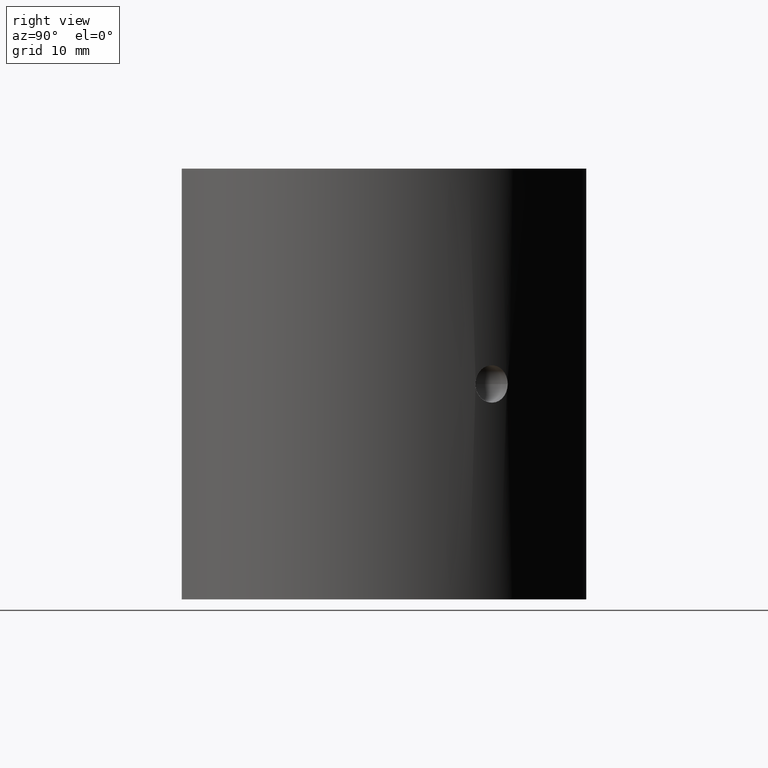
[diagram: clean part render]
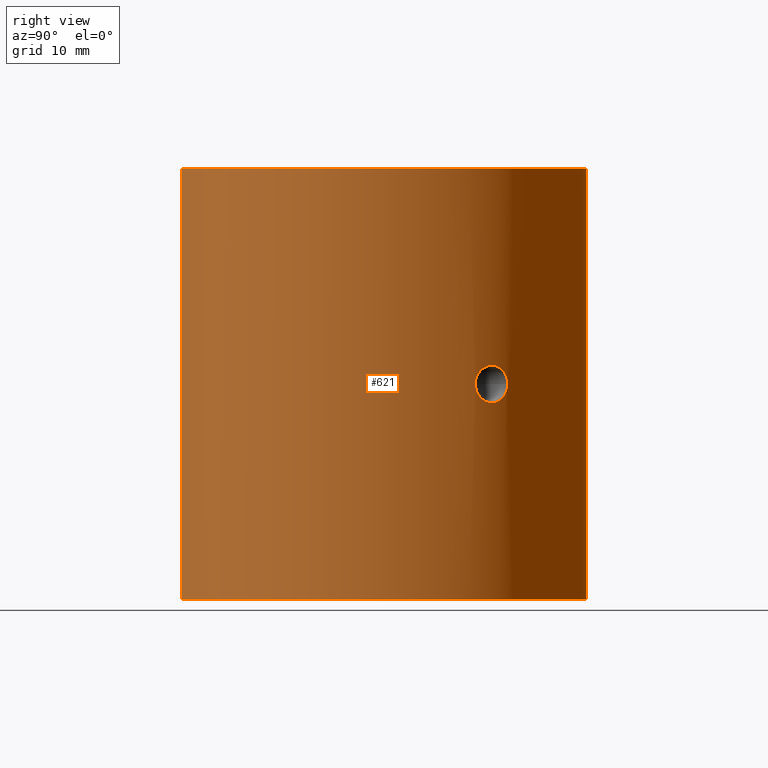
[diagram: same view with one face highlighted and labeled with its STEP entity id]
A machine part, right view. The second image highlights one B-rep face of the part: STEP entity #621.
In plain terms, the highlighted cylindrical surface (partial cylindrical patch) has radius 19.05 mm, axis along (-0, -0, -1).
Its self-contained STEP definition (entity closure, byte-faithful):
#4 = CARTESIAN_POINT ( 'NONE',  ( 17.01565507800766500, 8.565975748643698000, -1.243950164245572600 ) ) ;
#14 = DIRECTION ( 'NONE',  ( -1.224646799147350500E-016, -0.0000000000000000000, -1.000000000000000000 ) ) ;
#22 = CARTESIAN_POINT ( 'NONE',  ( 17.26078413097466300, 8.060262476116593100, 2.020667257415075000E-016 ) ) ;
#38 = DIRECTION ( 'NONE',  ( -1.000000000000000000, 0.0000000000000000000, 0.0000000000000000000 ) ) ;
#88 = CARTESIAN_POINT ( 'NONE',  ( 15.73005994635905400, 10.74590890078354200, 0.8316350020139843300 ) ) ;
#94 = CARTESIAN_POINT ( 'NONE',  ( 16.97828530475459300, 8.639929450375696300, 1.311713316252957100 ) ) ;
#97 = VERTEX_POINT ( 'NONE', #1075 ) ;
#98 = CARTESIAN_POINT ( 'NONE',  ( 16.75813757870110600, 9.059652095727887700, 1.565215042464108000 ) ) ;
#113 = CARTESIAN_POINT ( 'NONE',  ( 6.654321903845652000, -17.85000000000000100, -19.00000000000000400 ) ) ;
#118 = CARTESIAN_POINT ( 'NONE',  ( 17.11461735754569700, 8.366358851147474200, -1.006555369401223900 ) ) ;
#147 = DIRECTION ( 'NONE',  ( -1.224646799147350500E-016, -0.0000000000000000000, -1.000000000000000000 ) ) ;
#148 = CARTESIAN_POINT ( 'NONE',  ( 6.654321903845657400, 17.84999999999999400, -31.93906810035839800 ) ) ;
#157 = FACE_BOUND ( 'NONE', #236, .T. ) ;
#162 = CARTESIAN_POINT ( 'NONE',  ( 0.0000000000000000000, 0.0000000000000000000, -31.93906810035839800 ) ) ;
#203 = CARTESIAN_POINT ( 'NONE',  ( 16.60566664071821200, 9.336244399601058700, 1.639145259101398600 ) ) ;
#207 = CARTESIAN_POINT ( 'NONE',  ( 16.12050423523770700, 10.15095316555642700, 1.483320146304215600 ) ) ;
#222 = VERTEX_POINT ( 'NONE', #1290 ) ;
#236 = EDGE_LOOP ( 'NONE', ( #654, #1011 ) ) ;
#309 = CARTESIAN_POINT ( 'NONE',  ( 16.70802609073615800, 9.151802457604929900, 1.597061655437760400 ) ) ;
#329 = CARTESIAN_POINT ( 'NONE',  ( 16.55132681539708600, 9.432267731515489500, -1.650038726114885900 ) ) ;
#330 = VERTEX_POINT ( 'NONE', #1071 ) ;
#336 = CARTESIAN_POINT ( 'NONE',  ( 17.22489456637134000, 8.136782674229026600, -0.5315211267713244600 ) ) ;
#339 = CARTESIAN_POINT ( 'NONE',  ( 15.61695249371083300, 10.90934177564697500, -0.2163155206198695300 ) ) ;
#347 = CARTESIAN_POINT ( 'NONE',  ( 16.75710304632838500, 9.061566756828984400, -1.565958987164363300 ) ) ;
#359 = CARTESIAN_POINT ( 'NONE',  ( 6.654321903845657400, -17.84999999999999400, -31.93906810035839800 ) ) ;
#360 = DIRECTION ( 'NONE',  ( 1.224646799147350500E-016, 0.0000000000000000000, 1.000000000000000000 ) ) ;
#376 = B_SPLINE_CURVE_WITH_KNOTS ( 'NONE', 3,
 ( #1203, #1322, #649, #653, #533, #546, #94, #1432, #1208, #98, #309, #203, #978, #1307, #428, #660, #981, #207, #1435, #1103, #433, #1095, #88, #772, #1092, #1098 ),
 .UNSPECIFIED., .F., .F.,
 ( 4, 2, 2, 2, 2, 2, 2, 2, 2, 2, 2, 2, 4 ),
 ( 0.005161068146131831000, 0.005806051757352773800, 0.006451035368573717500, 0.006773527174184188400, 0.007096018979794660300, 0.007418510785405131200, 0.007741002591015603100, 0.008063494396626074900, 0.008385986202236546700, 0.008708478007847016800, 0.009030969813457488700, 0.009675953424678432300, 0.01032093703589937400 ),
 .UNSPECIFIED. ) ;
#380 = VECTOR ( 'NONE', #14, 1000.000000000000000 ) ;
#428 = CARTESIAN_POINT ( 'NONE',  ( 16.38942598168145200, 9.710836310594345400, 1.639446042719382000 ) ) ;
#433 = CARTESIAN_POINT ( 'NONE',  ( 15.92601336711078900, 10.45324911404658300, 1.243572887463719700 ) ) ;
#444 = CARTESIAN_POINT ( 'NONE',  ( 16.89609852627243200, 8.799565931564647100, -1.431593881218852900 ) ) ;
#451 = CARTESIAN_POINT ( 'NONE',  ( 15.84148222803165300, 10.58091455911873300, -1.090881399473324200 ) ) ;
#463 = CARTESIAN_POINT ( 'NONE',  ( 17.23821757406661700, 8.108440266158430300, -0.4286535483668675900 ) ) ;
#486 = LINE ( 'NONE', #359, #380 ) ;
#514 = AXIS2_PLACEMENT_3D ( 'NONE', #1152, #714, #917 ) ;
#533 = CARTESIAN_POINT ( 'NONE',  ( 17.11845235816605600, 8.359681726993109400, 1.013711685874964400 ) ) ;
#534 = EDGE_LOOP ( 'NONE', ( #908, #827, #1179, #724 ) ) ;
#546 = CARTESIAN_POINT ( 'NONE',  ( 17.01657973781694000, 8.564129346020747500, 1.242020872440629200 ) ) ;
#564 = CARTESIAN_POINT ( 'NONE',  ( 15.61078413097466100, 10.91814630860522300, 0.0000000000000000000 ) ) ;
#575 = CARTESIAN_POINT ( 'NONE',  ( 15.96775179229211600, 10.39021900892403500, -1.319077114444314300 ) ) ;
#580 = CARTESIAN_POINT ( 'NONE',  ( 15.64102548197286400, 10.87479954026614600, -0.4272846039626485000 ) ) ;
#621 = ADVANCED_FACE ( 'NONE', ( #157, #1249 ), #924, .T. ) ;
#627 = DIRECTION ( 'NONE',  ( -1.000000000000000000, 0.0000000000000000000, 1.821231995776175700E-016 ) ) ;
#649 = CARTESIAN_POINT ( 'NONE',  ( 17.24252505538149500, 8.099668500101348200, 0.4325064175069637800 ) ) ;
#653 = CARTESIAN_POINT ( 'NONE',  ( 17.17175730652585500, 8.248639348569481600, 0.8296514157329852900 ) ) ;
#654 = ORIENTED_EDGE ( 'NONE', *, *, #1334, .T. ) ;
#660 = CARTESIAN_POINT ( 'NONE',  ( 16.28088724407355400, 9.891730708320729100, 1.597668135974701100 ) ) ;
#672 = CARTESIAN_POINT ( 'NONE',  ( 17.26078413097467400, 8.060262476116596600, -0.1077124504069222900 ) ) ;
#677 = CARTESIAN_POINT ( 'NONE',  ( 17.25620680762654000, 8.070085209781993300, -0.2171185821548935500 ) ) ;
#684 = CARTESIAN_POINT ( 'NONE',  ( 15.80253967000229100, 10.63888360763968400, -1.006013819237391100 ) ) ;
#688 = CARTESIAN_POINT ( 'NONE',  ( 17.18924994856523400, 8.211815348386297200, -0.7314100125181884900 ) ) ;
#692 = CIRCLE ( 'NONE', #838, 19.04999999999999700 ) ;
#714 = DIRECTION ( 'NONE',  ( -1.224646799147350500E-016, -0.0000000000000000000, -1.000000000000000000 ) ) ;
#724 = ORIENTED_EDGE ( 'NONE', *, *, #1267, .T. ) ;
#737 = AXIS2_PLACEMENT_3D ( 'NONE', #162, #147, #38 ) ;
#772 = CARTESIAN_POINT ( 'NONE',  ( 15.63613571300858900, 10.88212313771379100, 0.4347756836946272700 ) ) ;
#783 = CARTESIAN_POINT ( 'NONE',  ( 17.08451312757541300, 8.427803358751504000, -1.089914829125269600 ) ) ;
#788 = CARTESIAN_POINT ( 'NONE',  ( 15.70640983788517900, 10.78020951962931700, -0.7319207306396199300 ) ) ;
#804 = CARTESIAN_POINT ( 'NONE',  ( 15.61078413097466100, 10.91814630860522300, 0.0000000000000000000 ) ) ;
#806 = EDGE_CURVE ( 'NONE', #222, #1363, #486, .T. ) ;
#827 = ORIENTED_EDGE ( 'NONE', *, *, #806, .T. ) ;
#838 = AXIS2_PLACEMENT_3D ( 'NONE', #1260, #1167, #627 ) ;
#840 = LINE ( 'NONE', #148, #1426 ) ;
#858 = B_SPLINE_CURVE_WITH_KNOTS ( 'NONE', 3,
 ( #564, #898, #339, #580, #1444, #788, #1336, #684, #451, #575, #1243, #1356, #1017, #329, #1134, #910, #347, #1109, #444, #1125, #4, #783, #118, #1022, #688, #336, #463, #677, #672, #22 ),
 .UNSPECIFIED., .F., .F.,
 ( 4, 2, 2, 2, 2, 2, 2, 2, 2, 2, 2, 2, 2, 2, 4 ),
 ( 0.0000000000000000000, 0.0003225667591332396000, 0.0006451335182664792000, 0.0009677002773997187000, 0.001290267036532958600, 0.001935400554799434100, 0.002580534073065909400, 0.002903100832199149900, 0.003225667591332389900, 0.003548234350465630400, 0.003870801109598870400, 0.004193367868732110500, 0.004515934627865350100, 0.004838501386998591400, 0.005161068146131831000 ),
 .UNSPECIFIED. ) ;
#898 = CARTESIAN_POINT ( 'NONE',  ( 15.61078413097466300, 10.91814630860522500, -0.1090743481477804800 ) ) ;
#908 = ORIENTED_EDGE ( 'NONE', *, *, #1020, .T. ) ;
#910 = CARTESIAN_POINT ( 'NONE',  ( 16.70793256847451900, 9.151977555784657900, -1.597140314786026100 ) ) ;
#917 = DIRECTION ( 'NONE',  ( -1.000000000000000000, 0.0000000000000000000, 1.821231995776175500E-016 ) ) ;
#924 = CYLINDRICAL_SURFACE ( 'NONE', #737, 19.04999999999999700 ) ;
#976 = EDGE_CURVE ( 'NONE', #97, #1422, #376, .T. ) ;
#978 = CARTESIAN_POINT ( 'NONE',  ( 16.55289875442129200, 9.429523418457513600, 1.649913834276578500 ) ) ;
#981 = CARTESIAN_POINT ( 'NONE',  ( 16.22622108837223500, 9.981094937876360300, 1.566042349243279300 ) ) ;
#1011 = ORIENTED_EDGE ( 'NONE', *, *, #976, .T. ) ;
#1017 = CARTESIAN_POINT ( 'NONE',  ( 16.38980555278116600, 9.712010583720898500, -1.649922225843778700 ) ) ;
#1020 = EDGE_CURVE ( 'NONE', #1051, #222, #692, .T. ) ;
#1022 = CARTESIAN_POINT ( 'NONE',  ( 17.16688996531914300, 8.258569890725828700, -0.8278835885027002700 ) ) ;
#1051 = VERTEX_POINT ( 'NONE', #1271 ) ;
#1071 = CARTESIAN_POINT ( 'NONE',  ( 6.654321903845659100, 17.84999999999999400, -19.00000000000000400 ) ) ;
#1075 = CARTESIAN_POINT ( 'NONE',  ( 17.26078413097466300, 8.060262476116593100, 2.020667257415075000E-016 ) ) ;
#1092 = CARTESIAN_POINT ( 'NONE',  ( 15.61078413097466500, 10.91814630860522500, 0.2180980059723592000 ) ) ;
#1095 = CARTESIAN_POINT ( 'NONE',  ( 15.79967678332250000, 10.64405884901846400, 1.015477476588795100 ) ) ;
#1098 = CARTESIAN_POINT ( 'NONE',  ( 15.61078413097466100, 10.91814630860522300, 0.0000000000000000000 ) ) ;
#1103 = CARTESIAN_POINT ( 'NONE',  ( 15.97258106789733700, 10.38206201851099700, 1.313167906712928000 ) ) ;
#1109 = CARTESIAN_POINT ( 'NONE',  ( 16.85128628683460400, 8.885192461217485500, -1.483261654121722700 ) ) ;
#1125 = CARTESIAN_POINT ( 'NONE',  ( 16.97801284336121000, 8.640462133712560400, -1.312144534480056900 ) ) ;
#1126 = CIRCLE ( 'NONE', #514, 19.05000000000000100 ) ;
#1134 = CARTESIAN_POINT ( 'NONE',  ( 16.60520092784709700, 9.337076953742185400, -1.639296301674260800 ) ) ;
#1152 = CARTESIAN_POINT ( 'NONE',  ( 1.584578833305349700E-015, 0.0000000000000000000, -19.00000000000000400 ) ) ;
#1167 = DIRECTION ( 'NONE',  ( -1.224646799147350500E-016, -0.0000000000000000000, -1.000000000000000000 ) ) ;
#1179 = ORIENTED_EDGE ( 'NONE', *, *, #1227, .F. ) ;
#1203 = CARTESIAN_POINT ( 'NONE',  ( 17.26078413097466300, 8.060262476116593100, 2.020667257415075000E-016 ) ) ;
#1208 = CARTESIAN_POINT ( 'NONE',  ( 16.85219149774607000, 8.883474147291460500, 1.482298987517379300 ) ) ;
#1227 = EDGE_CURVE ( 'NONE', #330, #1363, #1126, .T. ) ;
#1243 = CARTESIAN_POINT ( 'NONE',  ( 16.06786516224203600, 10.23551051970143700, -1.441988345408369100 ) ) ;
#1249 = FACE_OUTER_BOUND ( 'NONE', #534, .T. ) ;
#1260 = CARTESIAN_POINT ( 'NONE',  ( 6.238236670065281400E-015, 0.0000000000000000000, 18.99999999999999600 ) ) ;
#1267 = EDGE_CURVE ( 'NONE', #330, #1051, #840, .T. ) ;
#1271 = CARTESIAN_POINT ( 'NONE',  ( 6.654321903845648500, 17.85000000000000100, 19.00000000000000000 ) ) ;
#1290 = CARTESIAN_POINT ( 'NONE',  ( 6.654321903845648500, -17.85000000000000100, 18.99999999999999600 ) ) ;
#1307 = CARTESIAN_POINT ( 'NONE',  ( 16.44396632784933100, 9.618229591869692300, 1.650085145770909100 ) ) ;
#1322 = CARTESIAN_POINT ( 'NONE',  ( 17.26078413097466700, 8.060262476116594900, 0.2153748434078938100 ) ) ;
#1334 = EDGE_CURVE ( 'NONE', #1422, #97, #858, .T. ) ;
#1336 = CARTESIAN_POINT ( 'NONE',  ( 15.73516853596452800, 10.73827619237335200, -0.8266798870898438600 ) ) ;
#1356 = CARTESIAN_POINT ( 'NONE',  ( 16.27782822080116500, 9.898195536813732400, -1.606565970892555900 ) ) ;
#1363 = VERTEX_POINT ( 'NONE', #113 ) ;
#1422 = VERTEX_POINT ( 'NONE', #804 ) ;
#1426 = VECTOR ( 'NONE', #360, 1000.000000000000000 ) ;
#1432 = CARTESIAN_POINT ( 'NONE',  ( 16.89613472201057200, 8.799499091015549700, 1.431574881345304900 ) ) ;
#1435 = CARTESIAN_POINT ( 'NONE',  ( 16.06971152061095500, 10.23107664769962400, 1.432701528351388400 ) ) ;
#1444 = CARTESIAN_POINT ( 'NONE',  ( 15.65922308141885100, 10.84863861362715600, -0.5321096267850447000 ) ) ;